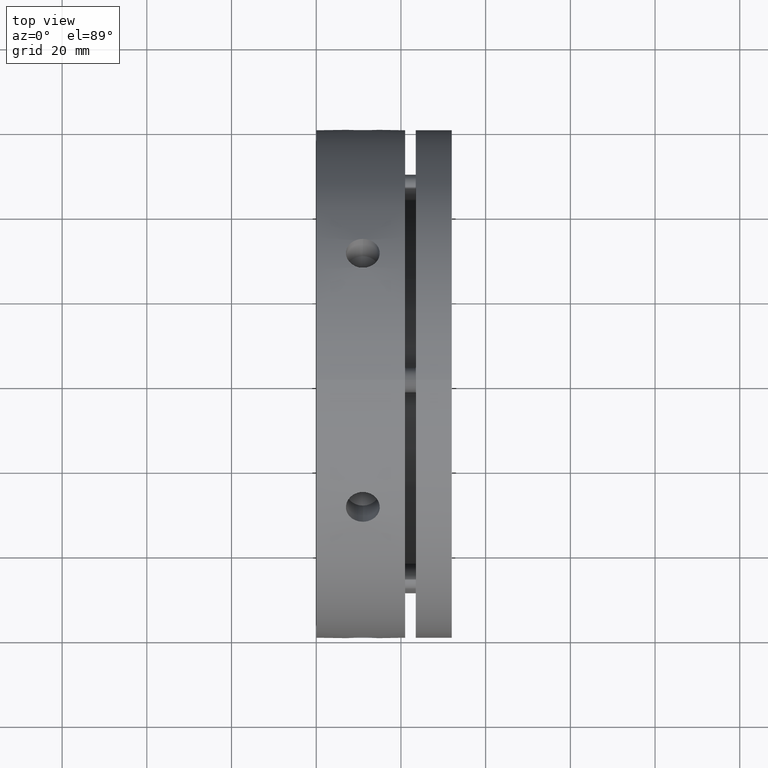
[diagram: clean part render]
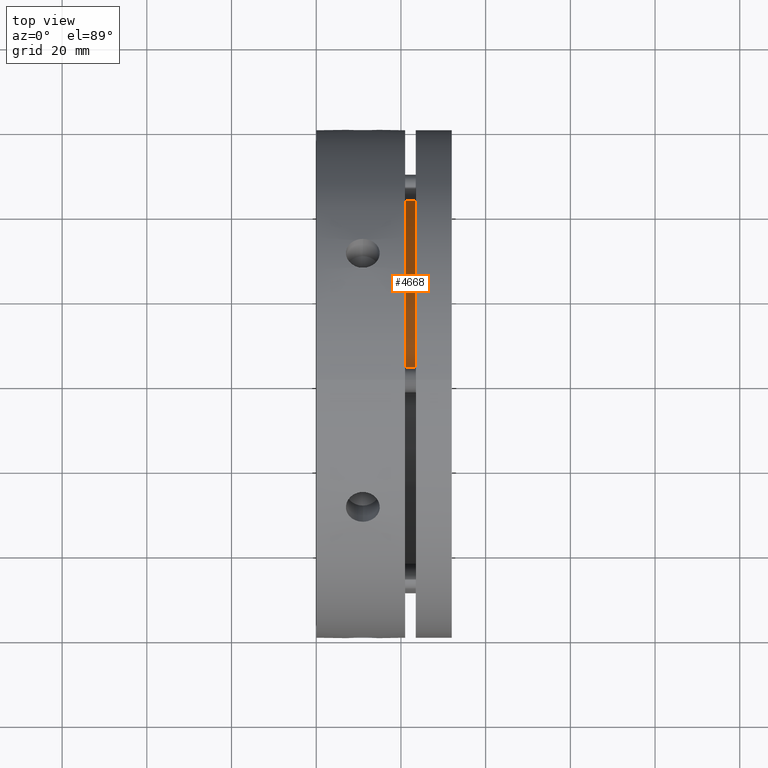
[diagram: same view with one face highlighted and labeled with its STEP entity id]
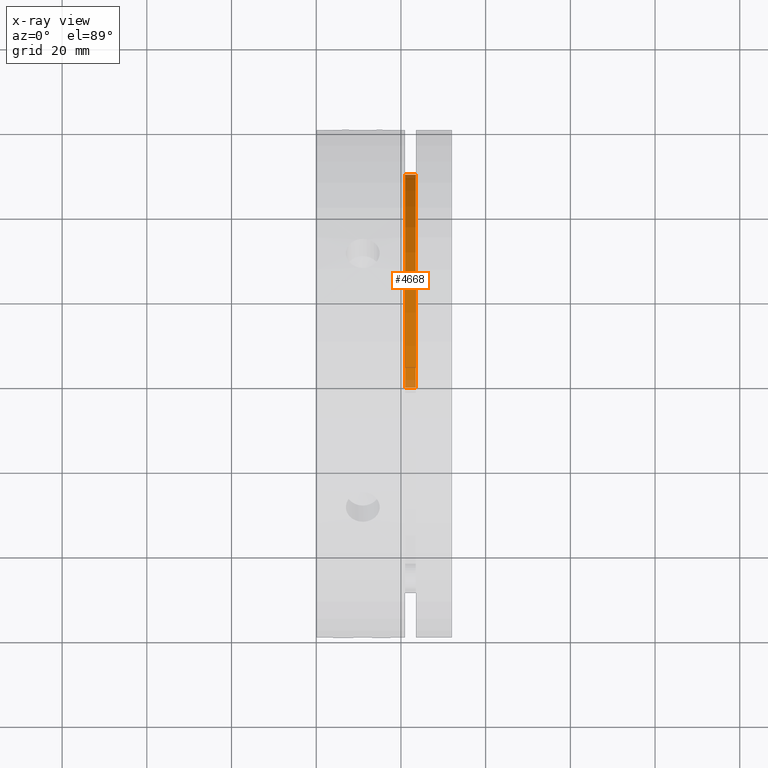
[diagram: x-ray of the same camera — body ghosted, the highlighted face saturated]
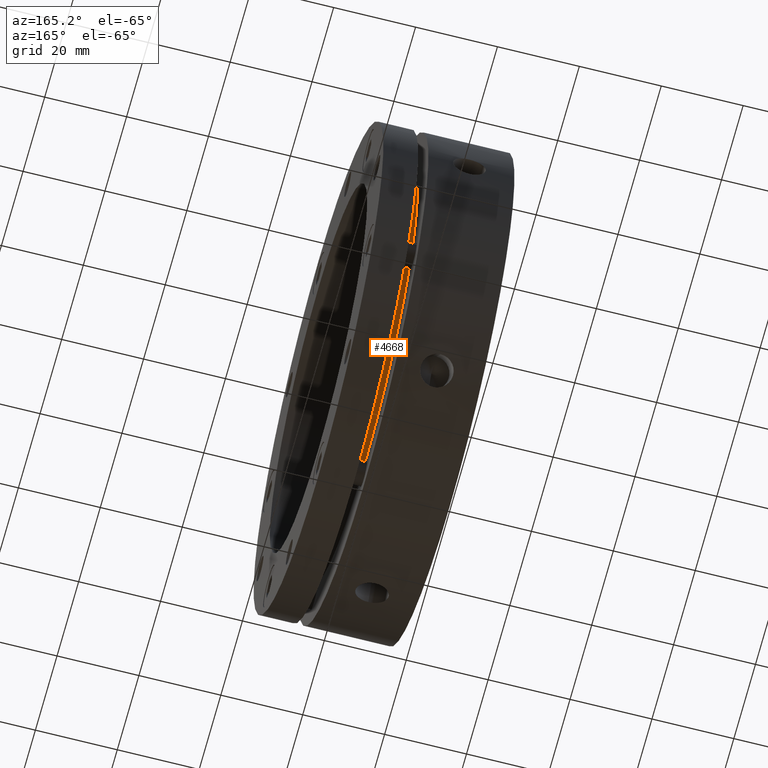
[diagram: same view with one face highlighted and labeled with its STEP entity id]
A machine part, top view. The second image highlights one B-rep face of the part: STEP entity #4668.
The next image is the same camera in x-ray: the body ghosted, the highlighted face saturated — about 5% of this face is hidden behind the body in this view.
A second angle (auxiliary view) of the same face is appended — the face is thin or edge-on in the first view.
In plain terms, the highlighted cylindrical surface (partial cylindrical patch) has radius 49.5 mm, axis along (-1, 0, 0).
Its self-contained STEP definition (entity closure, byte-faithful):
#8 = CARTESIAN_POINT ( 'NONE',  ( 22.24999999999999300, 0.0000000000000000000, 49.50000000000000000 ) ) ;
#11 = DIRECTION ( 'NONE',  ( -1.000000000000000000, 0.0000000000000000000, 0.0000000000000000000 ) ) ;
#13 = DIRECTION ( 'NONE',  ( -1.000000000000000000, 0.0000000000000000000, 0.0000000000000000000 ) ) ;
#24 = CARTESIAN_POINT ( 'NONE',  ( 22.24999999999999300, 6.062001655779398500E-015, -49.50000000000000000 ) ) ;
#25 = CARTESIAN_POINT ( 'NONE',  ( 23.49999999999999300, 0.0000000000000000000, 0.0000000000000000000 ) ) ;
#26 = DIRECTION ( 'NONE',  ( -1.000000000000000000, 0.0000000000000000000, 0.0000000000000000000 ) ) ;
#27 = DIRECTION ( 'NONE',  ( 0.0000000000000000000, 0.0000000000000000000, 1.000000000000000000 ) ) ;
#28 = CARTESIAN_POINT ( 'NONE',  ( 20.99999999999999300, 0.0000000000000000000, 0.0000000000000000000 ) ) ;
#29 = DIRECTION ( 'NONE',  ( 1.000000000000000000, -0.0000000000000000000, -0.0000000000000000000 ) ) ;
#30 = DIRECTION ( 'NONE',  ( 0.0000000000000000000, 0.0000000000000000000, 1.000000000000000000 ) ) ;
#374 = VECTOR ( 'NONE', #13, 1000.000000000000000 ) ;
#375 = LINE ( 'NONE', #8, #374 ) ;
#385 = VECTOR ( 'NONE', #11, 1000.000000000000000 ) ;
#387 = CIRCLE ( 'NONE', #917, 49.50000000000000000 ) ;
#403 = LINE ( 'NONE', #24, #385 ) ;
#407 = CIRCLE ( 'NONE', #918, 49.50000000000000000 ) ;
#703 = AXIS2_PLACEMENT_3D ( 'NONE', #3105, #3103, #3101 ) ;
#917 = AXIS2_PLACEMENT_3D ( 'NONE', #28, #29, #30 ) ;
#918 = AXIS2_PLACEMENT_3D ( 'NONE', #25, #26, #27 ) ;
#929 = EDGE_CURVE ( 'NONE', #4432, #4408, #407, .T. ) ;
#930 = EDGE_CURVE ( 'NONE', #4408, #4503, #403, .T. ) ;
#931 = EDGE_CURVE ( 'NONE', #4503, #4502, #387, .T. ) ;
#932 = EDGE_CURVE ( 'NONE', #4432, #4502, #375, .T. ) ;
#1802 = CARTESIAN_POINT ( 'NONE',  ( 23.49999999999999300, 6.062001655779398500E-015, -49.50000000000000000 ) ) ;
#1823 = CARTESIAN_POINT ( 'NONE',  ( 23.49999999999999300, 0.0000000000000000000, 49.50000000000000000 ) ) ;
#1889 = CARTESIAN_POINT ( 'NONE',  ( 20.99999999999999300, 0.0000000000000000000, 49.50000000000000000 ) ) ;
#1890 = CARTESIAN_POINT ( 'NONE',  ( 20.99999999999999300, 6.062001655779398500E-015, -49.50000000000000000 ) ) ;
#2113 = ORIENTED_EDGE ( 'NONE', *, *, #932, .F. ) ;
#2117 = ORIENTED_EDGE ( 'NONE', *, *, #931, .T. ) ;
#2118 = ORIENTED_EDGE ( 'NONE', *, *, #930, .T. ) ;
#2125 = ORIENTED_EDGE ( 'NONE', *, *, #929, .T. ) ;
#2622 = FACE_OUTER_BOUND ( 'NONE', #4483, .T. ) ;
#2631 = CYLINDRICAL_SURFACE ( 'NONE', #703, 49.50000000000000000 ) ;
#3101 = DIRECTION ( 'NONE',  ( 0.0000000000000000000, 0.0000000000000000000, 1.000000000000000000 ) ) ;
#3103 = DIRECTION ( 'NONE',  ( -1.000000000000000000, 0.0000000000000000000, 0.0000000000000000000 ) ) ;
#3105 = CARTESIAN_POINT ( 'NONE',  ( 22.24999999999999300, 0.0000000000000000000, 0.0000000000000000000 ) ) ;
#4408 = VERTEX_POINT ( 'NONE', #1802 ) ;
#4432 = VERTEX_POINT ( 'NONE', #1823 ) ;
#4483 = EDGE_LOOP ( 'NONE', ( #2125, #2118, #2117, #2113 ) ) ;
#4502 = VERTEX_POINT ( 'NONE', #1889 ) ;
#4503 = VERTEX_POINT ( 'NONE', #1890 ) ;
#4668 = ADVANCED_FACE ( 'NONE', ( #2622 ), #2631, .T. ) ;